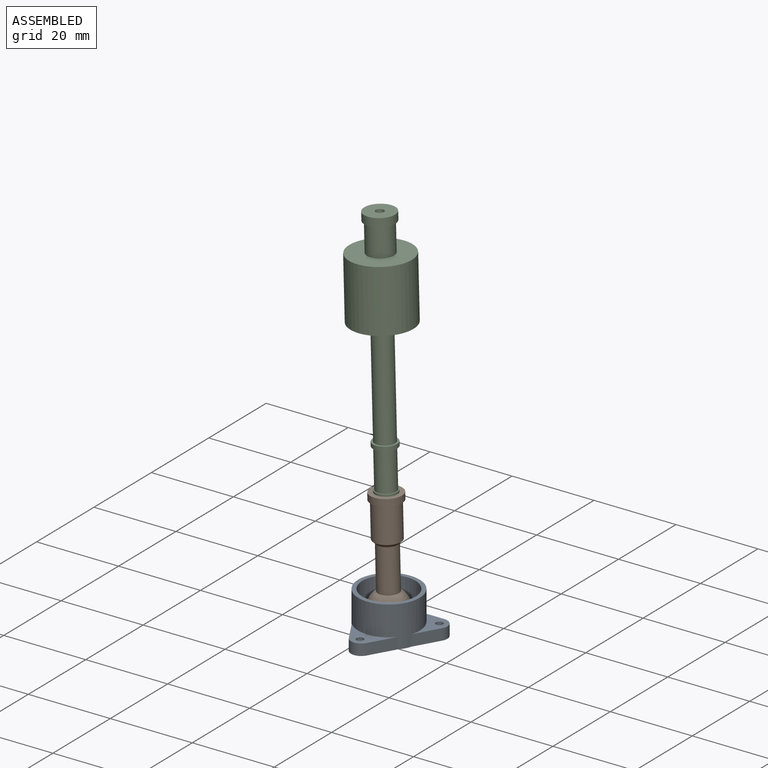
[diagram: assembled view]
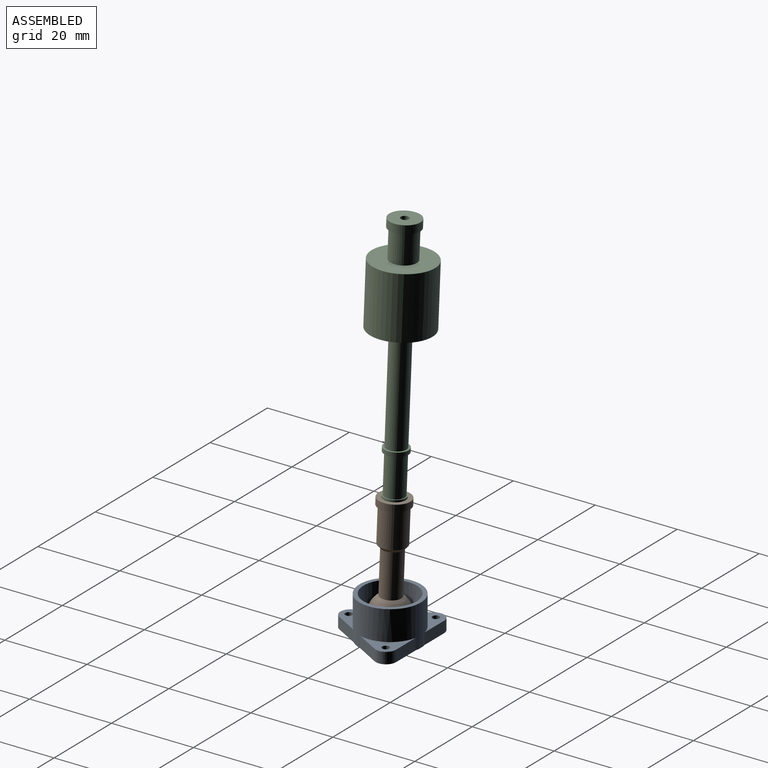
[diagram: assembled view, second angle]
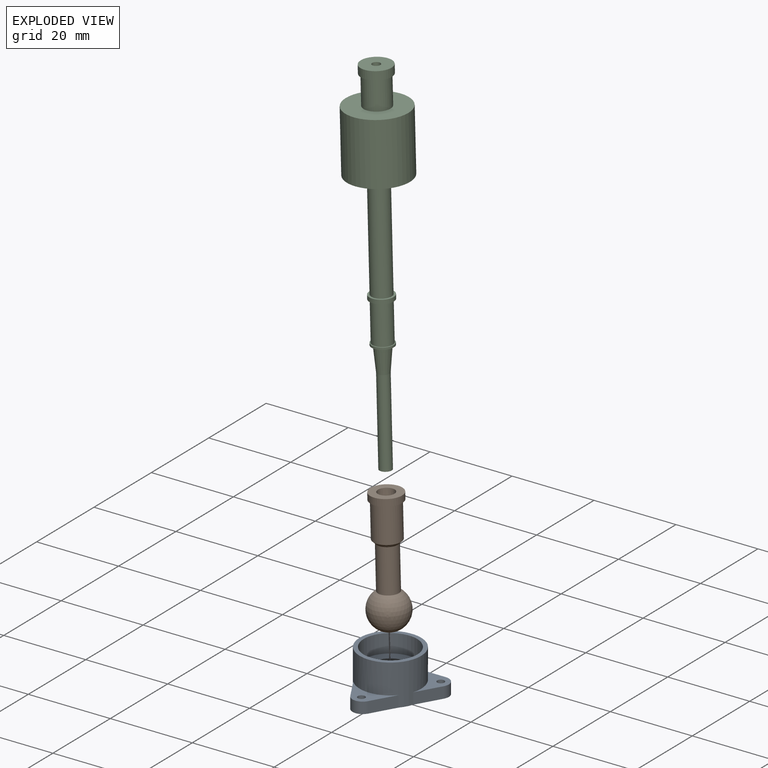
[diagram: exploded view]
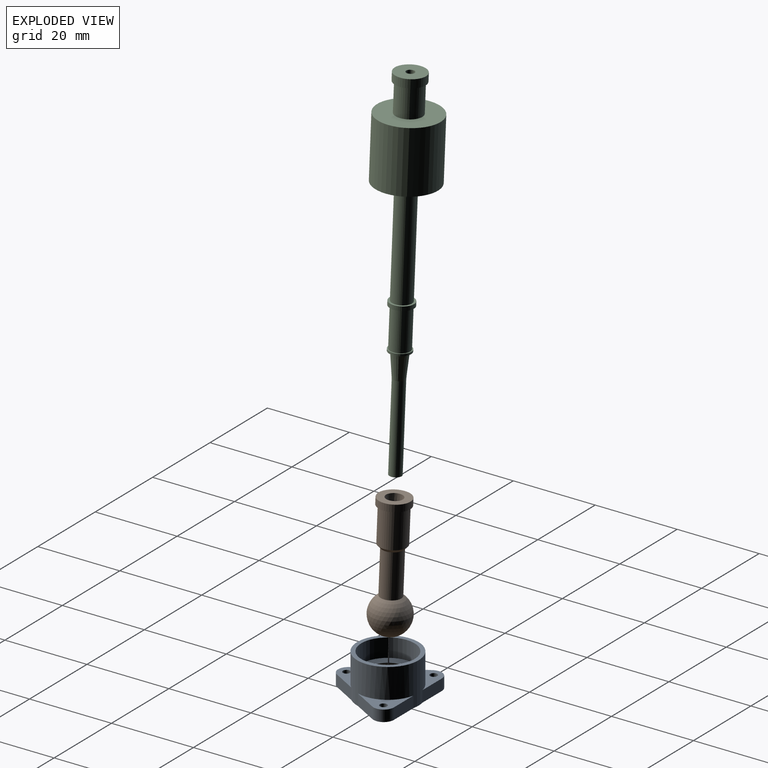
[diagram: exploded view, second angle]
ASSEMBLY  parts=3 mates=2
PART A: 41 faces, bbox 21.7x19.7x10 mm
  f0: cylinder r=7.5mm len=15mm, axis (0,0,-1), area 368.3mm2, adj f1,f2,f7,f8,f9,f12,f13,f14
  f1: plane 15x15mm, normal (0,0,1), area 44mm2, adj f0,f3
  f2: plane 21.72x19.65mm, normal (0,0,-1), area 213.1mm2, adj f0,f5,f6,f8,f9,f10,f11,f13
  f3: cylinder r=6.5mm len=13mm, axis (0,0,1), area 183.8mm2, adj f1,f4
  f4: plane 13x13mm, normal (0,0,1), area 78.1mm2, adj f3,f20,f22,f27,f32,f37
  f5: cylinder r=0.88mm len=2.75mm, axis (0,0,-1), area 15.1mm2, adj f2,f7
  f6: cylinder r=2.5mm len=3.75mm, axis (0,0,-1), area 14.4mm2, adj f2,f7,f8,f9
  f7: plane 9.6x9.26mm, normal (0,0,1), area 27.8mm2, adj f0,f5,f6,f8,f9
  f8: plane 6.76x2.75mm, normal (0,1,0), area 18.6mm2, adj f0,f2,f6,f7
  f9: plane 5.85x3.38mm, normal (0.87,-0.5,0), area 18.6mm2, adj f0,f2,f6,f7
  f10: cylinder r=0.88mm len=2.75mm, axis (0,0,-1), area 15.1mm2, adj f2,f12
  f11: cylinder r=2.5mm len=4.33mm, axis (0,0,-1), area 14.4mm2, adj f2,f12,f13,f14
  f12: plane 11.09x7.1mm, normal (0,0,1), area 27.8mm2, adj f0,f10,f11,f13,f14
  f13: plane 5.85x3.38mm, normal (0.87,-0.5,0), area 18.6mm2, adj f0,f2,f11,f12
  f14: plane 5.85x3.38mm, normal (-0.87,-0.5,0), area 18.6mm2, adj f0,f2,f11,f12
  f15: plane 9.6x9.26mm, normal (0,0,1), area 27.8mm2, adj f0,f16,f17,f18,f19
  f16: plane 5.85x3.38mm, normal (-0.87,-0.5,0), area 18.6mm2, adj f0,f2,f15,f19
  f17: plane 6.76x2.75mm, normal (0,1,0), area 18.6mm2, adj f0,f2,f15,f19
  f18: cylinder r=0.88mm len=2.75mm, axis (0,0,-1), area 15.1mm2, adj f2,f15
  f19: cylinder r=2.5mm len=3.75mm, axis (0,0,-1), area 14.4mm2, adj f2,f15,f16,f17
  f20: sphere r=4.88mm, area 167.5mm2, adj f2,f4,f23,f24,f25,f28,f29,f30
  f21: sphere r=4.62mm, area 0.2mm2, adj f22,f23,f24,f25
  f22: cone r=3.96mm half-angle=58.8deg, axis (0,0,1), area 0.1mm2, adj f4,f21,f24,f25
  f23: cone r=4.19mm half-angle=64.8deg, axis (0,0,1), area 0.1mm2, adj f20,f21,f24,f25
  f24: plane 0.56x0.45mm, normal (0.05,1,0), area 0.1mm2, adj f20,f21,f22,f23
  f25: plane 0.56x0.45mm, normal (0.05,-1,0), area 0.1mm2, adj f20,f21,f22,f23
  f26: sphere r=4.62mm, area 0.2mm2, adj f27,f28,f29,f30
  f27: cone r=3.96mm half-angle=58.8deg, axis (0,0,1), area 0.1mm2, adj f4,f26,f29,f30
  f28: cone r=4.19mm half-angle=64.8deg, axis (0,0,1), area 0.1mm2, adj f20,f26,f29,f30
  f29: plane 0.56x0.45mm, normal (1,-0.05,0), area 0.1mm2, adj f20,f26,f27,f28
  f30: plane 0.56x0.45mm, normal (-1,-0.05,0), area 0.1mm2, adj f20,f26,f27,f28
  f31: sphere r=4.62mm, area 0.2mm2, adj f32,f33,f34,f35
  f32: cone r=3.96mm half-angle=58.8deg, axis (0,0,1), area 0.1mm2, adj f4,f31,f34,f35
  f33: cone r=4.19mm half-angle=64.8deg, axis (0,0,1), area 0.1mm2, adj f20,f31,f34,f35
  f34: plane 0.56x0.45mm, normal (-0.05,-1,0), area 0.1mm2, adj f20,f31,f32,f33
  f35: plane 0.56x0.45mm, normal (-0.05,1,0), area 0.1mm2, adj f20,f31,f32,f33
  f36: sphere r=4.62mm, area 0.2mm2, adj f37,f38,f39,f40
  f37: cone r=3.96mm half-angle=58.8deg, axis (0,0,1), area 0.1mm2, adj f4,f36,f39,f40
  f38: cone r=4.19mm half-angle=64.8deg, axis (0,0,1), area 0.1mm2, adj f20,f36,f39,f40
  f39: plane 0.56x0.45mm, normal (-1,0.05,0), area 0.1mm2, adj f20,f36,f37,f38
  f40: plane 0.56x0.45mm, normal (1,0.05,0), area 0.1mm2, adj f20,f36,f37,f38
PART B: 11 faces, bbox 9.5x9.5x30 mm
  f0: cylinder r=2.5mm len=10.5mm, axis (0,0,-1), area 164.9mm2, adj f1,f9
  f1: sphere r=4.72mm, area 251.9mm2, adj f0,f10
  f2: cone r=0.5mm half-angle=6.6deg, axis (0,0,1), area 54.3mm2, adj f3,f10
  f3: cylinder r=1.5mm len=10.5mm, axis (0,0,-1), area 99mm2, adj f2,f4
  f4: cone r=2mm half-angle=2.6deg, axis (0,0,1), area 121.1mm2, adj f3,f5
  f5: plane 7.6x7.6mm, normal (0,0,1), area 32.8mm2, adj f4,f6
  f6: cylinder r=3.8mm len=7.6mm, axis (0,0,-1), area 39.6mm2, adj f5,f7
  f7: plane 7.6x7.6mm, normal (0,0,-1), area 11.2mm2, adj f6,f8
  f8: cylinder r=3.3mm len=8.54mm, axis (0,0,-1), area 177.1mm2, adj f7,f9
  f9: cone r=2.5mm half-angle=45deg, axis (0,0,1), area 20.6mm2, adj f0,f8
  f10: plane 3.03x3.03mm, normal (0,0,-1), area 6.4mm2, adj f1,f2
PART C: 20 faces, bbox 15x15x88 mm
  f0: plane 15x15mm, normal (0,0,1), area 144.5mm2, adj f1,f19
  f1: cylinder r=7.5mm len=15mm, axis (0,0,-1), area 706.9mm2, adj f0,f2
  f2: plane 15x15mm, normal (0,0,-1), area 158.6mm2, adj f1,f3
  f3: cylinder r=2.4mm len=26mm, axis (0,0,-1), area 392.1mm2, adj f2,f4
  f4: plane 5.8x5.8mm, normal (0,0,1), area 8.3mm2, adj f3,f5
  f5: cylinder r=2.9mm len=5.8mm, axis (0,0,-1), area 18.2mm2, adj f4,f6
  f6: plane 5.8x5.8mm, normal (0,0,-1), area 8.3mm2, adj f5,f7
  f7: cylinder r=2.4mm len=9.5mm, axis (0,0,-1), area 143.3mm2, adj f6,f8
  f8: plane 5.3x5.3mm, normal (0,0,1), area 4mm2, adj f7,f9
  f9: cylinder r=2.65mm len=5.3mm, axis (0,0,-1), area 8.3mm2, adj f8,f10
  f10: plane 5.3x5.3mm, normal (0,0,-1), area 9.5mm2, adj f9,f11
  f11: cone r=1.46mm half-angle=5.1deg, axis (0,0,1), area 65.5mm2, adj f10,f12
  f12: cylinder r=1.46mm len=21mm, axis (0,0,-1), area 192.6mm2, adj f11,f13
  f13: plane 2.92x2.92mm, normal (0,0,-1), area 6.7mm2, adj f12
  f14: plane 2x2mm, normal (0,0,1), area 3.1mm2, adj f15
  f15: cylinder r=1mm len=84.5mm, axis (0,0,-1), area 530.9mm2, adj f14,f16
  f16: plane 7.4x7.4mm, normal (0,0,1), area 39.9mm2, adj f15,f17
  f17: cylinder r=3.7mm len=7.4mm, axis (0,0,-1), area 46.5mm2, adj f16,f18
  f18: plane 7.4x7.4mm, normal (0,0,-1), area 10.8mm2, adj f17,f19
  f19: cylinder r=3.2mm len=7mm, axis (0,0,-1), area 140.7mm2, adj f0,f18
PLACE A at identity fixed
PLACE B rot(axis=(-0.02,0,1),121.6deg) t=(0,0,5.5)mm
PLACE C rot(axis=(-0.02,0,1),121.6deg) t=(-0.05,0.02,6.73)mm
MATE slider B.f0 <-> C.f11  axis (-0.04,0.02,1) through (-0.95,0.4,30.99)mm
MATE ball B.f2 <-> A.f22  axis (-0.04,0.02,1) through (0,0,5.5)mm
